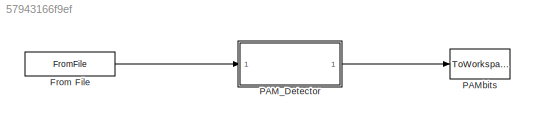
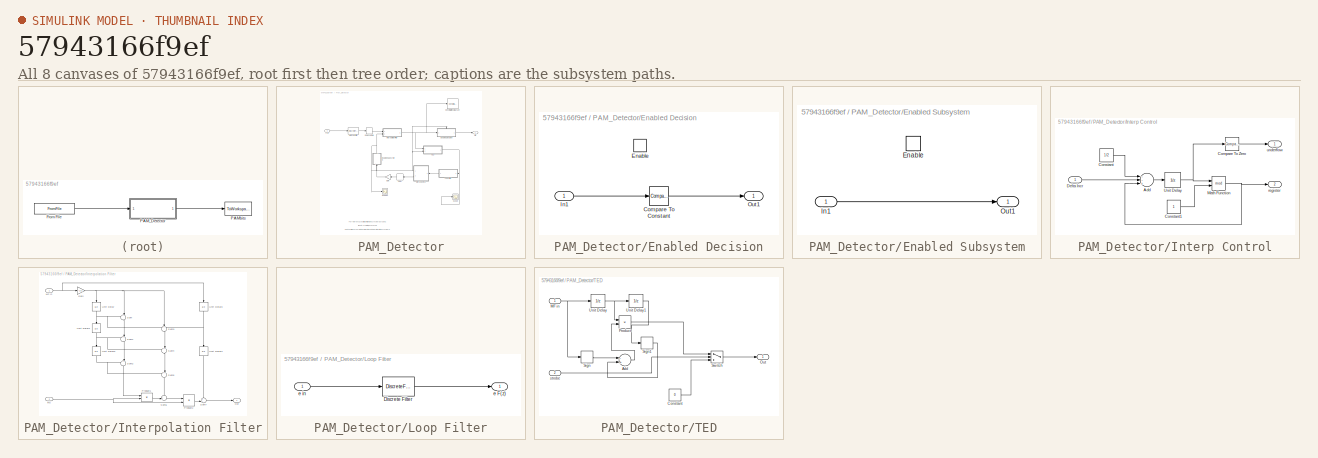
[diagram: thumbnail index - all 8 canvases of the model, root first then tree order]
MODEL slx_57943166f9ef
KIND model
CONFIG AbsTol = auto
CONFIG FixedStep = auto
CONFIG MaxStep = auto
CONFIG MinStep = auto
CONFIG RelTol = 1e-3
CONFIG SampleTimeConstraint = Unconstrained
CONFIG Solver = FixedStepDiscrete
CONFIG SolverMode = SingleTasking
CONFIG SolverName = FixedStepDiscrete
CONFIG StartTime = 0.0
CONFIG StopTime = (12+256+8+602+4)*8
BLOCK [FromFile] From File
  FileName = bbtrdata.mat
  SampleTime = 1
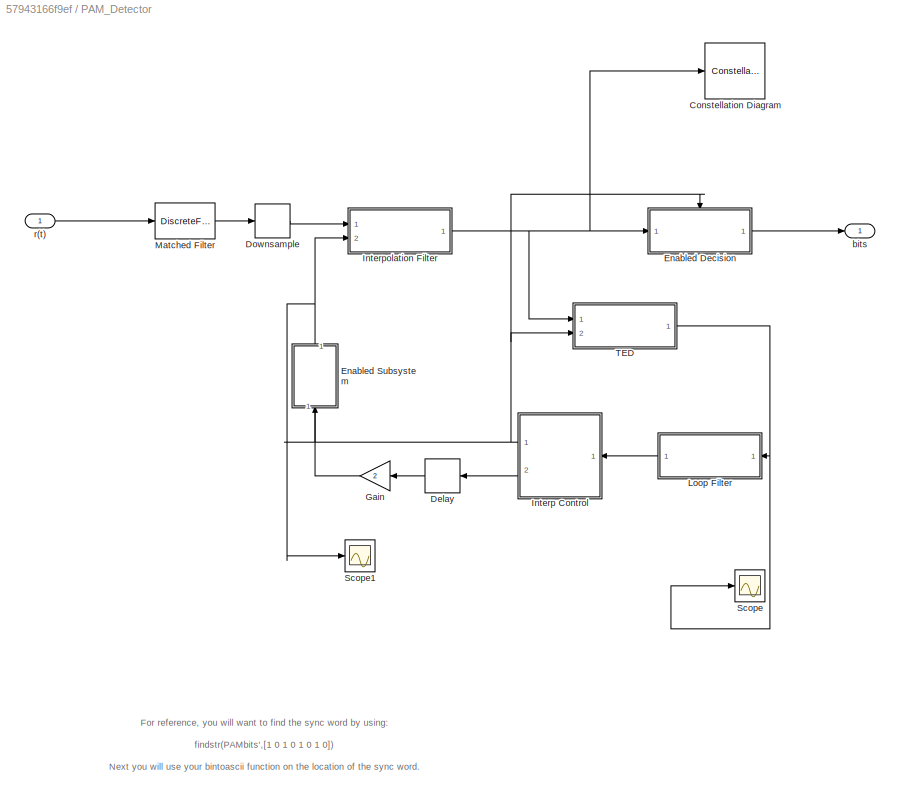
BLOCK [SubSystem] PAM_Detector
  Ports = [1, 1]
  RequestExecContextInheritance = off
  Variant = off
BLOCK [ConstellationDiagram] PAM_Detector/Constellation Diagram
  Ports = [1]
  ScopeSpecificationString = comm.scopes.ConstellationDiagramBlockCfg('CurrentConfiguration', extmgr.ConfigurationSet(extmgr.Configuration('Core','General UI',true),extmgr.Configuration('Core','Source UI',true),extmgr.Configuration('Sources','WiredSimulink',true),extmgr.Configuration('Sources','Simulink',false),extmgr.Configuration('Sources','SimulinkEvent',false),extmgr.Configuration('Sources','File',false),extmgr.Configurat...<+2299ch>
BLOCK [Delay] PAM_Detector/Delay
  DelayLength = 1
  InputPortMap = u0
  Ports = [1, 1]
BLOCK [DownSample] PAM_Detector/Downsample
  InputProcessing = Inherited (this choice will be removed - see release notes)
  N = 4
  UserDataPersistent = on
  phase = 1
BLOCK [SubSystem] PAM_Detector/Enabled Decision
  Ports = [1, 1, 1]
  RequestExecContextInheritance = off
  TreatAsAtomicUnit = on
  Variant = off
BLOCK [Reference] PAM_Detector/Enabled Decision/Compare To Constant  REF=simulink/Logic and Bit
Operations/Compare
To Constant
  Ports = [1, 1]
  SourceBlock = simulink/Logic and Bit\nOperations/Compare\nTo Constant
  SourceType = Compare To Constant
BLOCK [EnablePort] PAM_Detector/Enabled Decision/Enable
  Ports = []
BLOCK [Inport] PAM_Detector/Enabled Decision/In1
  IconDisplay = Port number
BLOCK [Outport] PAM_Detector/Enabled Decision/Out1
  IconDisplay = Port number
BLOCK [SubSystem] PAM_Detector/Enabled Subsystem
  Ports = [1, 1, 1]
  RequestExecContextInheritance = off
  TreatAsAtomicUnit = on
  Variant = off
BLOCK [EnablePort] PAM_Detector/Enabled Subsystem/Enable
  Ports = []
BLOCK [Inport] PAM_Detector/Enabled Subsystem/In1
  IconDisplay = Port number
BLOCK [Outport] PAM_Detector/Enabled Subsystem/Out1
  IconDisplay = Port number
BLOCK [Gain] PAM_Detector/Gain
  Gain = 2
  OutDataTypeStr = Inherit: Inherit via internal rule
  ParamDataTypeStr = Inherit: Inherit via internal rule
  SaturateOnIntegerOverflow = off
BLOCK [SubSystem] PAM_Detector/Interp Control
  Ports = [1, 2]
  RequestExecContextInheritance = off
  Variant = off
BLOCK [Sum] PAM_Detector/Interp Control/Add
  InputSameDT = off
  Inputs = --+
  OutDataTypeStr = Inherit: Inherit via internal rule
  Ports = [3, 1]
  SaturateOnIntegerOverflow = off
BLOCK [Reference] PAM_Detector/Interp Control/Compare To Zero  REF=simulink/Logic and Bit
Operations/Compare
To Zero
  Ports = [1, 1]
  SourceBlock = simulink/Logic and Bit\nOperations/Compare\nTo Zero
  SourceType = Compare To Zero
BLOCK [Constant] PAM_Detector/Interp Control/Constant
  Value = 1/2
BLOCK [Constant] PAM_Detector/Interp Control/Constant1
BLOCK [Inport] PAM_Detector/Interp Control/Delta Incr
  IconDisplay = Port number
BLOCK [Math] PAM_Detector/Interp Control/Math Function
  Operator = mod
  Ports = [2, 1]
BLOCK [UnitDelay] PAM_Detector/Interp Control/Unit Delay
  InputProcessing = Elements as channels (sample based)
  SampleTime = -1
BLOCK [Outport] PAM_Detector/Interp Control/register
  IconDisplay = Port number
  Port = 2
BLOCK [Outport] PAM_Detector/Interp Control/underflow
  IconDisplay = Port number
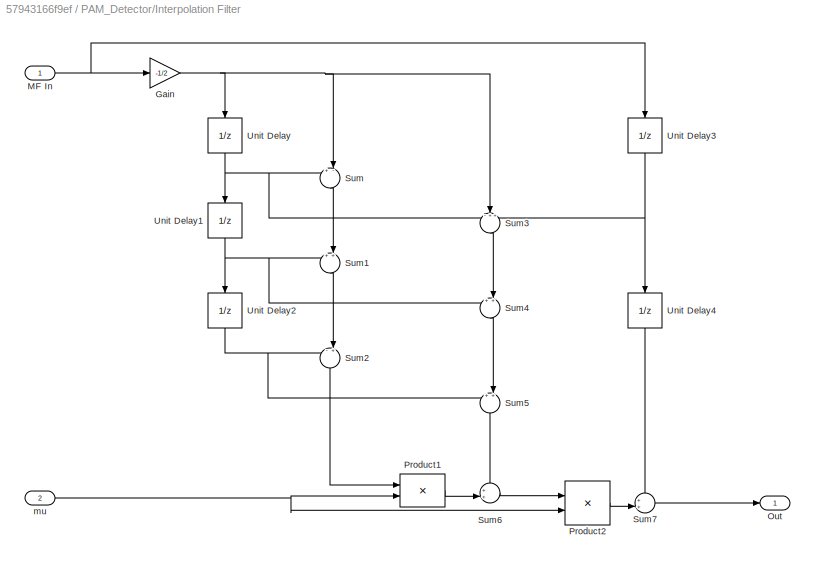
BLOCK [SubSystem] PAM_Detector/Interpolation Filter
  Ports = [2, 1]
  RequestExecContextInheritance = off
  Variant = off
BLOCK [Gain] PAM_Detector/Interpolation Filter/Gain
  Gain = -1/2
  OutDataTypeStr = Inherit: Inherit via internal rule
  ParamDataTypeStr = Inherit: Inherit via internal rule
  SaturateOnIntegerOverflow = off
BLOCK [Inport] PAM_Detector/Interpolation Filter/MF In
  IconDisplay = Port number
BLOCK [Outport] PAM_Detector/Interpolation Filter/Out
  IconDisplay = Port number
BLOCK [Product] PAM_Detector/Interpolation Filter/Product1
  Ports = [2, 1]
  RndMeth = Floor
BLOCK [Product] PAM_Detector/Interpolation Filter/Product2
  Ports = [2, 1]
  RndMeth = Floor
BLOCK [Sum] PAM_Detector/Interpolation Filter/Sum
  IconShape = round
  Inputs = +-|
  Ports = [2, 1]
BLOCK [Sum] PAM_Detector/Interpolation Filter/Sum1
  IconShape = round
  Inputs = ++|
  Ports = [2, 1]
BLOCK [Sum] PAM_Detector/Interpolation Filter/Sum2
  IconShape = round
  Inputs = -+|
  Ports = [2, 1]
BLOCK [Sum] PAM_Detector/Interpolation Filter/Sum3
  IconShape = round
  Inputs = -++
  Ports = [3, 1]
BLOCK [Sum] PAM_Detector/Interpolation Filter/Sum4
  IconShape = round
  Inputs = ++|
  Ports = [2, 1]
BLOCK [Sum] PAM_Detector/Interpolation Filter/Sum5
  IconShape = round
  Inputs = ++|
  Ports = [2, 1]
BLOCK [Sum] PAM_Detector/Interpolation Filter/Sum6
  IconShape = round
  Inputs = ++|
  Ports = [2, 1]
BLOCK [Sum] PAM_Detector/Interpolation Filter/Sum7
  IconShape = round
  Inputs = ++|
  Ports = [2, 1]
BLOCK [UnitDelay] PAM_Detector/Interpolation Filter/Unit Delay
  InputProcessing = Elements as channels (sample based)
  SampleTime = -1
BLOCK [UnitDelay] PAM_Detector/Interpolation Filter/Unit Delay1
  InputProcessing = Elements as channels (sample based)
  SampleTime = -1
BLOCK [UnitDelay] PAM_Detector/Interpolation Filter/Unit Delay2
  InputProcessing = Elements as channels (sample based)
  SampleTime = -1
BLOCK [UnitDelay] PAM_Detector/Interpolation Filter/Unit Delay3
  InputProcessing = Elements as channels (sample based)
  SampleTime = -1
BLOCK [UnitDelay] PAM_Detector/Interpolation Filter/Unit Delay4
  InputProcessing = Elements as channels (sample based)
  SampleTime = -1
BLOCK [Inport] PAM_Detector/Interpolation Filter/mu
  IconDisplay = Port number
  Port = 2
BLOCK [SubSystem] PAM_Detector/Loop Filter
  Ports = [1, 1]
  RequestExecContextInheritance = off
  Variant = off
BLOCK [DiscreteFilter] PAM_Detector/Loop Filter/Discrete Filter
  Denominator = [1 -1]
  InputPortMap = u0
  Numerator = [(K1+K2) -K1]
  Ports = [1, 1]
BLOCK [Outport] PAM_Detector/Loop Filter/e F(z)
  IconDisplay = Port number
BLOCK [Inport] PAM_Detector/Loop Filter/e in
  IconDisplay = Port number
BLOCK [DiscreteFilter] PAM_Detector/Matched Filter
  Denominator = [1]
  InputPortMap = u0
  Numerator = rcosine(1,8,'sqrt/fir', 0.5, 6)
  Ports = [1, 1]
  SampleTime = 1
BLOCK [Scope] PAM_Detector/Scope
  Ports = [1]
  ScopeSpecificationString = Simulink.scopes.TimeScopeBlockCfg('CurrentConfiguration', extmgr.ConfigurationSet(extmgr.Configuration('Core','General UI',true),extmgr.Configuration('Core','Source UI',true),extmgr.Configuration('Sources','WiredSimulink',true),extmgr.Configuration('Visuals','Time Domain',true,'SerializedDisplays',{struct('MinYLimReal','-0.98467','MaxYLimReal','1.4536','YLabelReal','','MinYLimMag','0.00000','MaxYL...<+1319ch>
BLOCK [Scope] PAM_Detector/Scope1
  Ports = [1]
  ScopeSpecificationString = Simulink.scopes.TimeScopeBlockCfg('CurrentConfiguration', extmgr.ConfigurationSet(extmgr.Configuration('Core','General UI',true),extmgr.Configuration('Core','Source UI',true),extmgr.Configuration('Sources','WiredSimulink',true,'DataLoggingVariableName','ScopeData1'),extmgr.Configuration('Visuals','Time Domain',true,'SerializedDisplays',{struct('MinYLimReal','-0.125','MaxYLimReal','1.125','YLabelRe...<+1364ch>
BLOCK [SubSystem] PAM_Detector/TED
  Ports = [2, 1]
  RequestExecContextInheritance = off
  Variant = off
BLOCK [Sum] PAM_Detector/TED/Add
  InputSameDT = off
  Inputs = -+
  OutDataTypeStr = Inherit: Inherit via internal rule
  Ports = [2, 1]
  SaturateOnIntegerOverflow = off
BLOCK [Constant] PAM_Detector/TED/Constant
  Value = 0
BLOCK [Inport] PAM_Detector/TED/MF in
  IconDisplay = Port number
BLOCK [Outport] PAM_Detector/TED/Out
  IconDisplay = Port number
BLOCK [Product] PAM_Detector/TED/Product
  InputSameDT = off
  OutDataTypeStr = Inherit: Inherit via internal rule
  Ports = [2, 1]
  RndMeth = Floor
  SaturateOnIntegerOverflow = off
BLOCK [Signum] PAM_Detector/TED/Sign
BLOCK [Signum] PAM_Detector/TED/Sign1
BLOCK [Switch] PAM_Detector/TED/Switch
  InputSameDT = off
  Threshold = 0.5
BLOCK [UnitDelay] PAM_Detector/TED/Unit Delay
  InputProcessing = Elements as channels (sample based)
  SampleTime = -1
BLOCK [UnitDelay] PAM_Detector/TED/Unit Delay1
  InputProcessing = Elements as channels (sample based)
  SampleTime = -1
BLOCK [Inport] PAM_Detector/TED/strobe
  IconDisplay = Port number
  Port = 2
BLOCK [Outport] PAM_Detector/bits
  IconDisplay = Port number
BLOCK [Inport] PAM_Detector/r(t)
  IconDisplay = Port number
BLOCK [ToWorkspace] PAMbits
  Decimation = 2
  MaxDataPoints = inf
  Ports = [1]
  SampleTime = -1
  VariableName = PAMbits
ANNOTATION PAM_Detector: For reference, you will want to find the sync word by using: findstr(PAMbits',[1 0 1 0 1 0 1 0]) Next you will use your bintoascii function on the location of the sync word. derp = bintoascii(PAMbits(271+8:271+8+601)) % message is 601 bits long
LINE From File:1 -> PAM_Detector:1
LINE PAM_Detector/Delay:1 -> PAM_Detector/Gain:1
LINE PAM_Detector/Downsample:1 -> PAM_Detector/Interpolation Filter:1
LINE PAM_Detector/Enabled Decision/Compare To Constant:1 -> PAM_Detector/Enabled Decision/Out1:1
LINE PAM_Detector/Enabled Decision/In1:1 -> PAM_Detector/Enabled Decision/Compare To Constant:1
LINE PAM_Detector/Enabled Decision:1 -> PAM_Detector/bits:1
LINE PAM_Detector/Enabled Subsystem/In1:1 -> PAM_Detector/Enabled Subsystem/Out1:1
NET PAM_Detector/Enabled Subsystem:1 -> PAM_Detector/Interpolation Filter:2, PAM_Detector/Scope1:1
LINE PAM_Detector/Gain:1 -> PAM_Detector/Enabled Subsystem:1
LINE PAM_Detector/Interp Control/Add:1 -> PAM_Detector/Interp Control/Unit Delay:1
LINE PAM_Detector/Interp Control/Compare To Zero:1 -> PAM_Detector/Interp Control/underflow:1
LINE PAM_Detector/Interp Control/Constant1:1 -> PAM_Detector/Interp Control/Math Function:2
LINE PAM_Detector/Interp Control/Constant:1 -> PAM_Detector/Interp Control/Add:1
LINE PAM_Detector/Interp Control/Delta Incr:1 -> PAM_Detector/Interp Control/Add:2
NET PAM_Detector/Interp Control/Math Function:1 -> PAM_Detector/Interp Control/Add:3, PAM_Detector/Interp Control/register:1
NET PAM_Detector/Interp Control/Unit Delay:1 -> PAM_Detector/Interp Control/Compare To Zero:1, PAM_Detector/Interp Control/Math Function:1
NET PAM_Detector/Interp Control:1 -> PAM_Detector/Enabled Decision:enable, PAM_Detector/Enabled Subsystem:enable, PAM_Detector/TED:2
LINE PAM_Detector/Interp Control:2 -> PAM_Detector/Delay:1
NET PAM_Detector/Interpolation Filter/Gain:1 -> PAM_Detector/Interpolation Filter/Sum3:2, PAM_Detector/Interpolation Filter/Sum:2, PAM_Detector/Interpolation Filter/Unit Delay:1
NET PAM_Detector/Interpolation Filter/MF In:1 -> PAM_Detector/Interpolation Filter/Gain:1, PAM_Detector/Interpolation Filter/Unit Delay3:1
LINE PAM_Detector/Interpolation Filter/Product1:1 -> PAM_Detector/Interpolation Filter/Sum6:2
LINE PAM_Detector/Interpolation Filter/Product2:1 -> PAM_Detector/Interpolation Filter/Sum7:2
LINE PAM_Detector/Interpolation Filter/Sum1:1 -> PAM_Detector/Interpolation Filter/Sum2:2
LINE PAM_Detector/Interpolation Filter/Sum2:1 -> PAM_Detector/Interpolation Filter/Product1:1
LINE PAM_Detector/Interpolation Filter/Sum3:1 -> PAM_Detector/Interpolation Filter/Sum4:2
LINE PAM_Detector/Interpolation Filter/Sum4:1 -> PAM_Detector/Interpolation Filter/Sum5:2
LINE PAM_Detector/Interpolation Filter/Sum5:1 -> PAM_Detector/Interpolation Filter/Sum6:1
LINE PAM_Detector/Interpolation Filter/Sum6:1 -> PAM_Detector/Interpolation Filter/Product2:1
LINE PAM_Detector/Interpolation Filter/Sum7:1 -> PAM_Detector/Interpolation Filter/Out:1
LINE PAM_Detector/Interpolation Filter/Sum:1 -> PAM_Detector/Interpolation Filter/Sum1:2
NET PAM_Detector/Interpolation Filter/Unit Delay1:1 -> PAM_Detector/Interpolation Filter/Sum1:1, PAM_Detector/Interpolation Filter/Sum4:1, PAM_Detector/Interpolation Filter/Unit Delay2:1
NET PAM_Detector/Interpolation Filter/Unit Delay2:1 -> PAM_Detector/Interpolation Filter/Sum2:1, PAM_Detector/Interpolation Filter/Sum5:1
NET PAM_Detector/Interpolation Filter/Unit Delay3:1 -> PAM_Detector/Interpolation Filter/Sum3:3, PAM_Detector/Interpolation Filter/Unit Delay4:1
LINE PAM_Detector/Interpolation Filter/Unit Delay4:1 -> PAM_Detector/Interpolation Filter/Sum7:1
NET PAM_Detector/Interpolation Filter/Unit Delay:1 -> PAM_Detector/Interpolation Filter/Sum3:1, PAM_Detector/Interpolation Filter/Sum:1, PAM_Detector/Interpolation Filter/Unit Delay1:1
NET PAM_Detector/Interpolation Filter/mu:1 -> PAM_Detector/Interpolation Filter/Product1:2, PAM_Detector/Interpolation Filter/Product2:2
NET PAM_Detector/Interpolation Filter:1 -> PAM_Detector/Constellation Diagram:1, PAM_Detector/Enabled Decision:1, PAM_Detector/TED:1
LINE PAM_Detector/Loop Filter/Discrete Filter:1 -> PAM_Detector/Loop Filter/e F(z):1
LINE PAM_Detector/Loop Filter/e in:1 -> PAM_Detector/Loop Filter/Discrete Filter:1
LINE PAM_Detector/Loop Filter:1 -> PAM_Detector/Interp Control:1
LINE PAM_Detector/Matched Filter:1 -> PAM_Detector/Downsample:1
LINE PAM_Detector/TED/Add:1 -> PAM_Detector/TED/Product:2
LINE PAM_Detector/TED/Constant:1 -> PAM_Detector/TED/Switch:3
NET PAM_Detector/TED/MF in:1 -> PAM_Detector/TED/Sign:1, PAM_Detector/TED/Unit Delay:1
LINE PAM_Detector/TED/Product:1 -> PAM_Detector/TED/Switch:1
LINE PAM_Detector/TED/Sign1:1 -> PAM_Detector/TED/Add:2
LINE PAM_Detector/TED/Sign:1 -> PAM_Detector/TED/Add:1
LINE PAM_Detector/TED/Switch:1 -> PAM_Detector/TED/Out:1
LINE PAM_Detector/TED/Unit Delay1:1 -> PAM_Detector/TED/Sign1:1
NET PAM_Detector/TED/Unit Delay:1 -> PAM_Detector/TED/Product:1, PAM_Detector/TED/Unit Delay1:1
LINE PAM_Detector/TED/strobe:1 -> PAM_Detector/TED/Switch:2
NET PAM_Detector/TED:1 -> PAM_Detector/Loop Filter:1, PAM_Detector/Scope:1
LINE PAM_Detector/r(t):1 -> PAM_Detector/Matched Filter:1
LINE PAM_Detector:1 -> PAMbits:1
note: NET lines group one-source signal fan-out (src -> all destinations, sorted); 1:1 wires keep LINE
